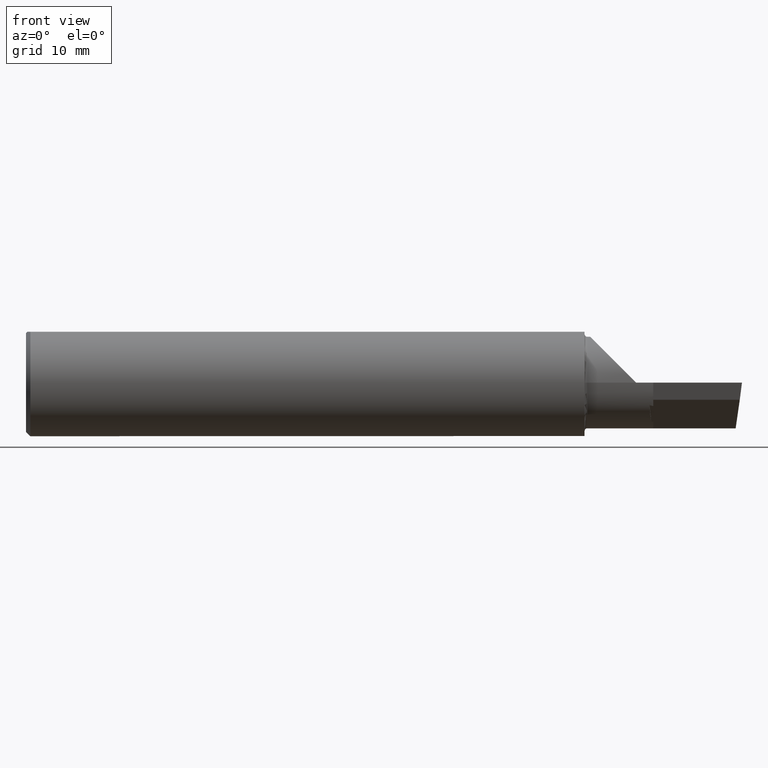
[diagram: clean part render]
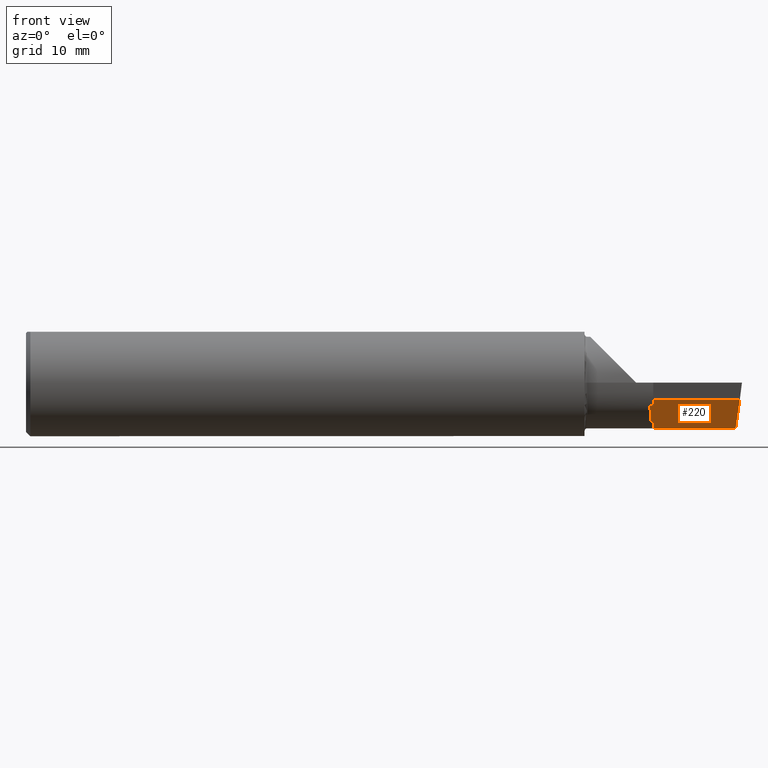
[diagram: same view with one face highlighted and labeled with its STEP entity id]
A machine part, front view. The second image highlights one B-rep face of the part: STEP entity #220.
In plain terms, the highlighted planar face has unit normal (0.0684, 0.71, 0.7009).
Its self-contained STEP definition (entity closure, byte-faithful):
#2 = EDGE_CURVE ( 'NONE', #267, #449, #276, .T. ) ;
#5 = CARTESIAN_POINT ( 'NONE',  ( 2.175820948016079726, -0.1204296831016317265, -0.05999999999999983125 ) ) ;
#15 = DIRECTION ( 'NONE',  ( -0.9953961983671787417, 0.09584575252022420333, -1.549503674720205804E-17 ) ) ;
#26 = PLANE ( 'NONE',  #264 ) ;
#36 = EDGE_CURVE ( 'NONE', #449, #174, #335, .T. ) ;
#44 = DIRECTION ( 'NONE',  ( -0.06717917588521388206, -0.6976824170844043715, 0.7132504491541848957 ) ) ;
#46 = VECTOR ( 'NONE', #15, 39.37007874015748854 ) ;
#49 = CARTESIAN_POINT ( 'NONE',  ( 2.189999999999999947, -0.04642774919836933911, -0.1363411565314570917 ) ) ;
#72 = CARTESIAN_POINT ( 'NONE',  ( 2.185459073836549138, -0.04532669166221831719, -0.1370135507928378904 ) ) ;
#74 =( BOUNDED_CURVE ( )  B_SPLINE_CURVE ( 3, ( #400, #563, #299, #557 ),
 .UNSPECIFIED., .F., .T. ) 
 B_SPLINE_CURVE_WITH_KNOTS ( ( 4, 4 ),
 ( 2.879714720919916093, 2.901033340933480087 ),
 .UNSPECIFIED. ) 
 CURVE ( )  GEOMETRIC_REPRESENTATION_ITEM ( )  RATIONAL_B_SPLINE_CURVE ( ( 1.000000000000000000, 0.9999621267286613602, 0.9999621267286613602, 1.000000000000000000 ) ) 
 REPRESENTATION_ITEM ( '' )  );
#88 = CARTESIAN_POINT ( 'NONE',  ( 2.189999999999999947, -0.02302137530785867275, -0.1600499999999999701 ) ) ;
#114 = ORIENTED_EDGE ( 'NONE', *, *, #240, .F. ) ;
#115 = LINE ( 'NONE', #442, #266 ) ;
#121 = CARTESIAN_POINT ( 'NONE',  ( 2.486877961997428166, -0.1130647732409290895, -0.09779851461133440282 ) ) ;
#134 = VECTOR ( 'NONE', #44, 39.37007874015748854 ) ;
#136 = EDGE_CURVE ( 'NONE', #448, #201, #74, .T. ) ;
#146 = CARTESIAN_POINT ( 'NONE',  ( 2.189999999999999947, -0.1661090091505227351, -0.01511331185988414039 ) ) ;
#168 = CARTESIAN_POINT ( 'NONE',  ( 2.477837650838079497, -0.05073698874247281609, -0.1600499999999999701 ) ) ;
#174 = VERTEX_POINT ( 'NONE', #88 ) ;
#175 = VECTOR ( 'NONE', #547, 39.37007874015748143 ) ;
#182 = CARTESIAN_POINT ( 'NONE',  ( 2.187757153469975790, -0.04587823668963943863, -0.1366790178048616633 ) ) ;
#201 = VERTEX_POINT ( 'NONE', #356 ) ;
#220 = ADVANCED_FACE ( 'NONE', ( #246 ), #26, .F. ) ;
#224 = ORIENTED_EDGE ( 'NONE', *, *, #650, .F. ) ;
#226 = ORIENTED_EDGE ( 'NONE', *, *, #363, .F. ) ;
#232 = EDGE_LOOP ( 'NONE', ( #416, #226, #531, #472, #224, #114, #553, #584 ) ) ;
#240 = EDGE_CURVE ( 'NONE', #381, #241, #483, .T. ) ;
#241 = VERTEX_POINT ( 'NONE', #520 ) ;
#246 = FACE_OUTER_BOUND ( 'NONE', #232, .T. ) ;
#258 = DIRECTION ( 'NONE',  ( -4.798168849487817696E-18, -0.7025528302622682242, 0.7116315905652844664 ) ) ;
#264 = AXIS2_PLACEMENT_3D ( 'NONE', #343, #464, #669 ) ;
#266 = VECTOR ( 'NONE', #605, 39.37007874015748143 ) ;
#267 = VERTEX_POINT ( 'NONE', #633 ) ;
#276 = LINE ( 'NONE', #121, #175 ) ;
#277 = CARTESIAN_POINT ( 'NONE',  ( 2.189999999999999947, -0.1217949705215068124, -0.05999999999999983125 ) ) ;
#299 = CARTESIAN_POINT ( 'NONE',  ( 2.186045468799003189, -0.1005894066173259327, -0.08109389478699442766 ) ) ;
#305 = LINE ( 'NONE', #146, #408 ) ;
#335 = LINE ( 'NONE', #645, #46 ) ;
#336 = DIRECTION ( 'NONE',  ( 0.9953961983671787417, -0.09584575252022421721, -0.000000000000000000 ) ) ;
#343 = CARTESIAN_POINT ( 'NONE',  ( 2.175820948016079726, -0.1204296831016317265, -0.05999999999999983125 ) ) ;
#356 = CARTESIAN_POINT ( 'NONE',  ( 2.189999999999999947, -0.1000061867039840624, -0.08207035003867028944 ) ) ;
#363 = EDGE_CURVE ( 'NONE', #365, #267, #693, .T. ) ;
#365 = VERTEX_POINT ( 'NONE', #277 ) ;
#380 = CARTESIAN_POINT ( 'NONE',  ( 2.177622056381672611, -0.1017244575405930607, -0.07912261253292700303 ) ) ;
#381 = VERTEX_POINT ( 'NONE', #49 ) ;
#385 = EDGE_CURVE ( 'NONE', #174, #381, #115, .T. ) ;
#400 = CARTESIAN_POINT ( 'NONE',  ( 2.177622056381672611, -0.1017244575405930607, -0.07912261253292700303 ) ) ;
#408 = VECTOR ( 'NONE', #258, 39.37007874015748143 ) ;
#416 = ORIENTED_EDGE ( 'NONE', *, *, #2, .F. ) ;
#417 = CARTESIAN_POINT ( 'NONE',  ( 2.175820948016079726, -0.1204296831016317265, -0.05999999999999983125 ) ) ;
#442 = CARTESIAN_POINT ( 'NONE',  ( 2.189999999999999947, -0.1661090091505227351, -0.01511331185988414039 ) ) ;
#448 = VERTEX_POINT ( 'NONE', #380 ) ;
#449 = VERTEX_POINT ( 'NONE', #168 ) ;
#464 = DIRECTION ( 'NONE',  ( 0.06836202603457078308, 0.7099667855717585185, 0.7009092642998474565 ) ) ;
#472 = ORIENTED_EDGE ( 'NONE', *, *, #136, .F. ) ;
#483 =( BOUNDED_CURVE ( )  B_SPLINE_CURVE ( 3, ( #662, #182, #72, #613 ),
 .UNSPECIFIED., .F., .T. ) 
 B_SPLINE_CURVE_WITH_KNOTS ( ( 4, 4 ),
 ( 3.382151966246107477, 3.394243161054599334 ),
 .UNSPECIFIED. ) 
 CURVE ( )  GEOMETRIC_REPRESENTATION_ITEM ( )  RATIONAL_B_SPLINE_CURVE ( ( 1.000000000000000000, 0.9999878169544487161, 0.9999878169544487161, 1.000000000000000000 ) ) 
 REPRESENTATION_ITEM ( '' )  );
#520 = CARTESIAN_POINT ( 'NONE',  ( 2.183105845092545128, -0.04477313427460049428, -0.1373447432684937464 ) ) ;
#531 = ORIENTED_EDGE ( 'NONE', *, *, #675, .F. ) ;
#547 = DIRECTION ( 'NONE',  ( -0.1020886612874987442, 0.7038430390621321919, -0.7029814233678640667 ) ) ;
#553 = ORIENTED_EDGE ( 'NONE', *, *, #385, .F. ) ;
#557 = CARTESIAN_POINT ( 'NONE',  ( 2.189999999999999947, -0.1000061867039840624, -0.08207035003867028944 ) ) ;
#563 = CARTESIAN_POINT ( 'NONE',  ( 2.181919331322569544, -0.1011621852558630547, -0.08011127840351645046 ) ) ;
#570 = VECTOR ( 'NONE', #336, 39.37007874015748143 ) ;
#584 = ORIENTED_EDGE ( 'NONE', *, *, #36, .F. ) ;
#605 = DIRECTION ( 'NONE',  ( -4.798168849487817696E-18, -0.7025528302622682242, 0.7116315905652844664 ) ) ;
#613 = CARTESIAN_POINT ( 'NONE',  ( 2.183105845092545128, -0.04477313427460049428, -0.1373447432684937464 ) ) ;
#633 = CARTESIAN_POINT ( 'NONE',  ( 2.492367153641839028, -0.1509096159518784896, -0.05999999999999982431 ) ) ;
#637 = LINE ( 'NONE', #417, #134 ) ;
#645 = CARTESIAN_POINT ( 'NONE',  ( 2.491387742473507139, -0.05204171416903758535, -0.1600499999999999701 ) ) ;
#650 = EDGE_CURVE ( 'NONE', #241, #448, #637, .T. ) ;
#662 = CARTESIAN_POINT ( 'NONE',  ( 2.189999999999999947, -0.04642774919836933911, -0.1363411565314570917 ) ) ;
#669 = DIRECTION ( 'NONE',  ( 0.000000000000000000, -0.7025528302622682242, 0.7116315905652844664 ) ) ;
#675 = EDGE_CURVE ( 'NONE', #201, #365, #305, .T. ) ;
#693 = LINE ( 'NONE', #5, #570 ) ;